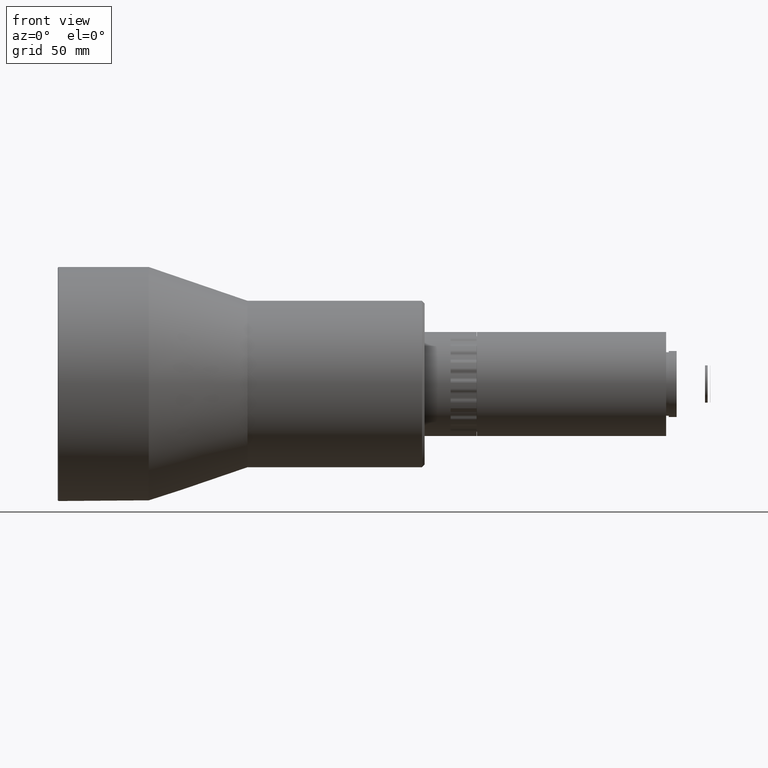
[diagram: clean part render]
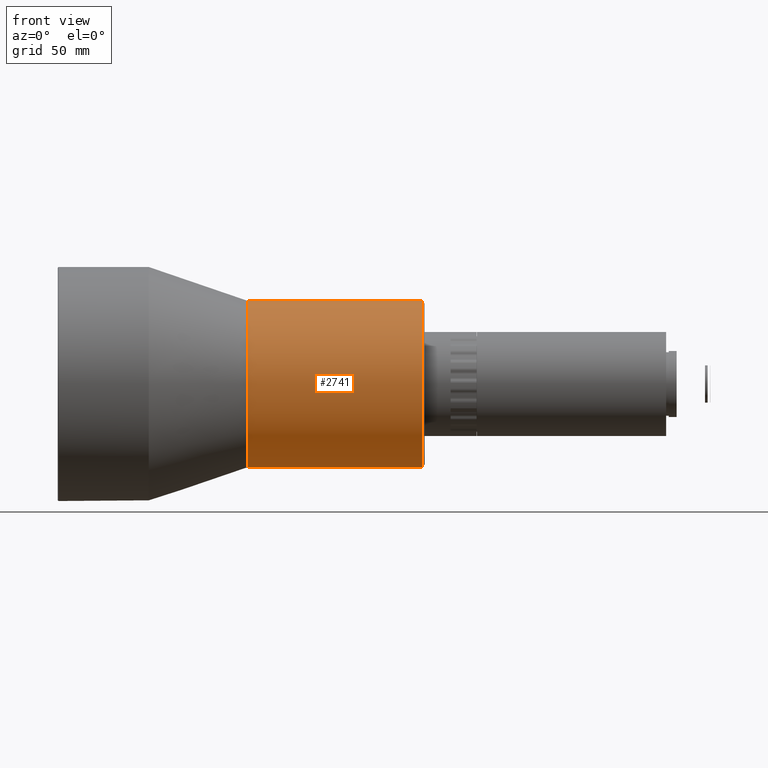
[diagram: same view with one face highlighted and labeled with its STEP entity id]
A machine part, front view. The second image highlights one B-rep face of the part: STEP entity #2741.
In plain terms, the highlighted cylindrical surface (bore or boss wall) has radius 32 mm, axis along (-1, -0, -0).
Its self-contained STEP definition (entity closure, byte-faithful):
#144 = CARTESIAN_POINT ( 'NONE',  ( -105.9567210347150166, 14.57465430743931201, 160.0850000000000080 ) ) ;
#271 = ORIENTED_EDGE ( 'NONE', *, *, #3666, .T. ) ;
#1497 = EDGE_CURVE ( 'NONE', #5841, #5841, #7467, .T. ) ;
#1836 = CARTESIAN_POINT ( 'NONE',  ( -4.684820483310265793, 14.57465430743931201, 192.0850000000000080 ) ) ;
#2045 = CYLINDRICAL_SURFACE ( 'NONE', #3334, 32.00000000000000000 ) ;
#2306 = CARTESIAN_POINT ( 'NONE',  ( -4.684820483310265793, 14.57465430743931201, 160.0850000000000080 ) ) ;
#2506 = ORIENTED_EDGE ( 'NONE', *, *, #1497, .F. ) ;
#2741 = ADVANCED_FACE ( 'NONE', ( #7447, #7481 ), #2045, .T. ) ;
#2796 = AXIS2_PLACEMENT_3D ( 'NONE', #3595, #7148, #3553 ) ;
#2857 = CARTESIAN_POINT ( 'NONE',  ( 62.41821056476263863, 14.57465430743931201, 192.0850000000000080 ) ) ;
#2932 = DIRECTION ( 'NONE',  ( 0.000000000000000000, 0.000000000000000000, 1.000000000000000000 ) ) ;
#3073 = EDGE_LOOP ( 'NONE', ( #2506 ) ) ;
#3288 = AXIS2_PLACEMENT_3D ( 'NONE', #2306, #3440, #2932 ) ;
#3334 = AXIS2_PLACEMENT_3D ( 'NONE', #144, #4948, #5694 ) ;
#3440 = DIRECTION ( 'NONE',  ( 1.000000000000000000, 0.000000000000000000, 0.000000000000000000 ) ) ;
#3553 = DIRECTION ( 'NONE',  ( 0.000000000000000000, 0.000000000000000000, 1.000000000000000000 ) ) ;
#3595 = CARTESIAN_POINT ( 'NONE',  ( 62.41821056476263863, 14.57465430743931201, 160.0850000000000080 ) ) ;
#3666 = EDGE_CURVE ( 'NONE', #5995, #5995, #4012, .T. ) ;
#4012 = CIRCLE ( 'NONE', #3288, 32.00000000000000000 ) ;
#4948 = DIRECTION ( 'NONE',  ( -1.000000000000000000, -0.000000000000000000, -0.000000000000000000 ) ) ;
#5694 = DIRECTION ( 'NONE',  ( 0.000000000000000000, 0.000000000000000000, 1.000000000000000000 ) ) ;
#5841 = VERTEX_POINT ( 'NONE', #2857 ) ;
#5995 = VERTEX_POINT ( 'NONE', #1836 ) ;
#7148 = DIRECTION ( 'NONE',  ( 1.000000000000000000, 0.000000000000000000, 0.000000000000000000 ) ) ;
#7149 = EDGE_LOOP ( 'NONE', ( #271 ) ) ;
#7447 = FACE_OUTER_BOUND ( 'NONE', #3073, .T. ) ;
#7467 = CIRCLE ( 'NONE', #2796, 32.00000000000000000 ) ;
#7481 = FACE_OUTER_BOUND ( 'NONE', #7149, .T. ) ;